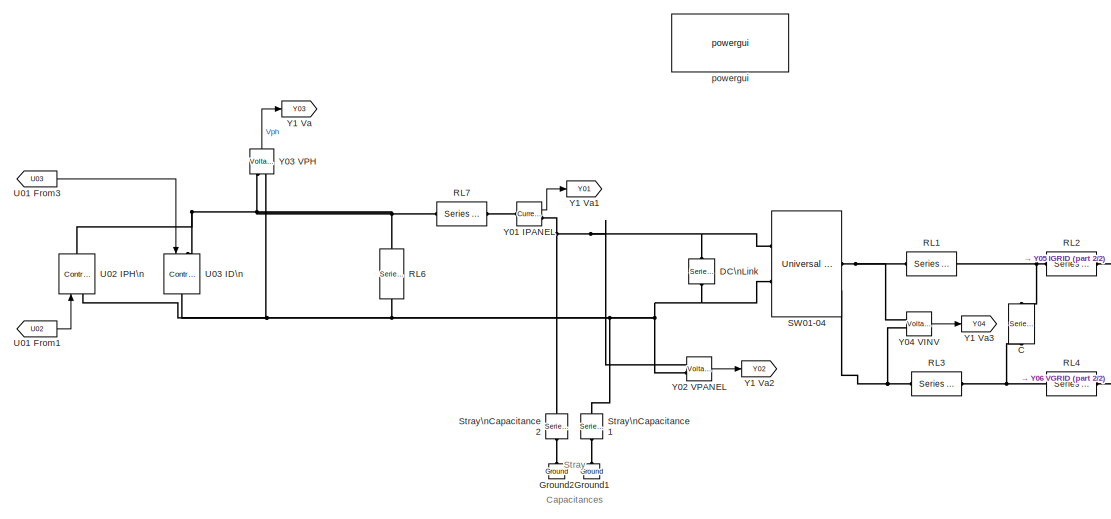
[diagram: root canvas - part 1/2, left side, full height]
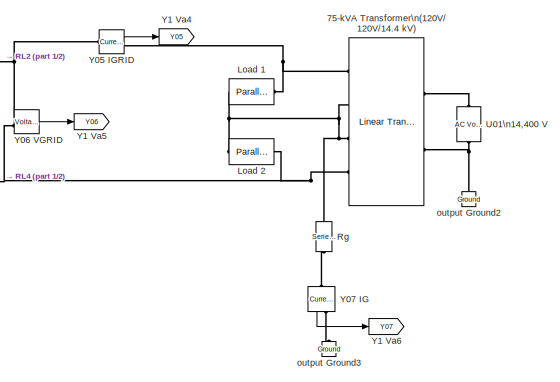
[diagram: root canvas - part 2/2, bottom right region]
MODEL my_pv_sys_fpga
KIND model
BLOCK [Reference] 75-kVA Transformer\n(120V//120V//14.4 kV)  REF=powerlib/Elements/Linear Transformer
  DataType = off
  Measurements = None
  NominalPower = [75e3,60]
  Ports = [0, 0, 0, 0, 0, 2, 4]
  RmLm = [50,50]
  SID = 3
  SourceBlock = powerlib/Elements/Linear Transformer
  SourceType = Linear Transformer
  ThreeWindings = on
  UNITS = pu
  winding1 = [14.4e3 0.01,0.03]
  winding2 = [120,0.02,0]
  winding3 = [120,0.02,0]
BLOCK [Reference] C  REF=powerlib/Elements/Series RLC Load
  ActivePower = 10.5
  AttributesFormatString = \\n
  CapacitivePower = 630
  InductivePower = 0
  InitialCurrent = 0
  InitialVoltage = 0
  LConnTagsString = a
  Measurements = None
  NominalFrequency = 50
  NominalVoltage = 240
  Ports = [0, 0, 0, 0, 0, 1, 1]
  RConnTagsString = __new0
  SID = 8
  SetiL0 = off
  Setx0 = off
  SourceBlock = powerlib/Elements/Series RLC Load
  SourceType = Series RLC Load
BLOCK [Reference] DC\nLink  REF=powerlib/Elements/Series RLC Branch
  AttributesFormatString = \\n
  BranchType = C
  Capacitance = 3000e-6
  Inductance = 1.0
  InitialCurrent = 0
  InitialVoltage = 400
  LConnTagsString = __new0
  Measurements = None
  Ports = [0, 0, 0, 0, 0, 1, 1]
  RConnTagsString = __new0
  Resistance = 1.0
  SID = 10
  SetiL0 = off
  Setx0 = on
  SourceBlock = powerlib/Elements/Series RLC Branch
  SourceType = Series RLC Branch
BLOCK [Reference] Ground1  REF=powerlib/Elements/Ground
  LConnTagsString = a
  Ports = [0, 0, 0, 0, 0, 1]
  SID = 39
  SourceBlock = powerlib/Elements/Ground
  SourceType = Ground
BLOCK [Reference] Ground2  REF=powerlib/Elements/Ground
  LConnTagsString = a
  Ports = [0, 0, 0, 0, 0, 1]
  SID = 40
  SourceBlock = powerlib/Elements/Ground
  SourceType = Ground
BLOCK [Reference] Load 1  REF=powerlib/Elements/Parallel RLC Load
  ActivePower = 5e3
  AttributesFormatString = \\n
  CapacitivePower = 0
  InductivePower = 0
  InitialCurrent = 0
  InitialVoltage = 0
  LConnTagsString = a
  Measurements = None
  NominalFrequency = 50
  NominalVoltage = 120
  Ports = [0, 0, 0, 0, 0, 1, 1]
  RConnTagsString = __new0
  SID = 42
  SetiL0 = off
  Setx0 = off
  SourceBlock = powerlib/Elements/Parallel RLC Load
  SourceType = Parallel RLC Load
BLOCK [Reference] Load 2  REF=powerlib/Elements/Parallel RLC Load
  ActivePower = 5e3
  AttributesFormatString = \\n
  CapacitivePower = 0
  InductivePower = 0
  InitialCurrent = 0
  InitialVoltage = 0
  LConnTagsString = a
  Measurements = None
  NominalFrequency = 50
  NominalVoltage = 120
  Ports = [0, 0, 0, 0, 0, 1, 1]
  RConnTagsString = __new0
  SID = 43
  SetiL0 = off
  Setx0 = off
  SourceBlock = powerlib/Elements/Parallel RLC Load
  SourceType = Parallel RLC Load
BLOCK [Reference] RL1  REF=powerlib/Elements/Series RLC Branch
  BranchType = RL
  Capacitance = 1e-6
  Inductance = 2.183e-3
  InitialCurrent = 0
  InitialVoltage = 0
  LConnTagsString = __new0
  Measurements = None
  Ports = [0, 0, 0, 0, 0, 1, 1]
  RConnTagsString = __new0
  Resistance = 8.23e-3
  SID = 54
  SetiL0 = off
  Setx0 = off
  SourceBlock = powerlib/Elements/Series RLC Branch
  SourceType = Series RLC Branch
BLOCK [Reference] RL2  REF=powerlib/Elements/Series RLC Branch
  BranchType = RL
  Capacitance = 1e-6
  Inductance = 2.183e-3
  InitialCurrent = 0
  InitialVoltage = 0
  LConnTagsString = __new0
  Measurements = None
  Ports = [0, 0, 0, 0, 0, 1, 1]
  RConnTagsString = __new0
  Resistance = 8.23e-3
  SID = 55
  SetiL0 = off
  Setx0 = off
  SourceBlock = powerlib/Elements/Series RLC Branch
  SourceType = Series RLC Branch
BLOCK [Reference] RL3  REF=powerlib/Elements/Series RLC Branch
  BranchType = RL
  Capacitance = 1e-6
  Inductance = 2.183e-3
  InitialCurrent = 0
  InitialVoltage = 0
  LConnTagsString = __new0
  Measurements = None
  Ports = [0, 0, 0, 0, 0, 1, 1]
  RConnTagsString = __new0
  Resistance = 8.23e-3
  SID = 56
  SetiL0 = off
  Setx0 = off
  SourceBlock = powerlib/Elements/Series RLC Branch
  SourceType = Series RLC Branch
BLOCK [Reference] RL4  REF=powerlib/Elements/Series RLC Branch
  BranchType = RL
  Capacitance = 1e-6
  Inductance = 2.183e-3
  InitialCurrent = 0
  InitialVoltage = 0
  LConnTagsString = __new0
  Measurements = None
  Ports = [0, 0, 0, 0, 0, 1, 1]
  RConnTagsString = __new0
  Resistance = 8.23e-3
  SID = 57
  SetiL0 = off
  Setx0 = off
  SourceBlock = powerlib/Elements/Series RLC Branch
  SourceType = Series RLC Branch
BLOCK [Reference] RL6  REF=powerlib/Elements/Series RLC Branch
  BranchType = R
  Capacitance = 1e-6
  Inductance = 2.183e-3
  InitialCurrent = 0
  InitialVoltage = 0
  LConnTagsString = __new0
  Measurements = None
  Ports = [0, 0, 0, 0, 0, 1, 1]
  RConnTagsString = __new0
  Resistance = 301.8
  SID = 69
  SetiL0 = off
  Setx0 = off
  SourceBlock = powerlib/Elements/Series RLC Branch
  SourceType = Series RLC Branch
BLOCK [Reference] RL7  REF=powerlib/Elements/Series RLC Branch
  BranchType = R
  Capacitance = 1e-6
  Inductance = 2.183e-3
  InitialCurrent = 0
  InitialVoltage = 0
  LConnTagsString = __new0
  Measurements = None
  Ports = [0, 0, 0, 0, 0, 1, 1]
  RConnTagsString = __new0
  Resistance = 0.247
  SID = 91
  SetiL0 = off
  Setx0 = off
  SourceBlock = powerlib/Elements/Series RLC Branch
  SourceType = Series RLC Branch
BLOCK [Reference] Rg  REF=powerlib/Elements/Series RLC Branch
  BranchType = R
  Capacitance = 50e-9
  Inductance = 1
  InitialCurrent = 0
  InitialVoltage = 0
  LConnTagsString = __new0
  Measurements = None
  Ports = [0, 0, 0, 0, 0, 1, 1]
  RConnTagsString = __new0
  Resistance = 0.2
  SID = 58
  SetiL0 = off
  Setx0 = off
  SourceBlock = powerlib/Elements/Series RLC Branch
  SourceType = Series RLC Branch
BLOCK [Reference] SW01-04  REF=powerlib/Power\nElectronics/Universal Bridge
  Arms = 2
  Device = IGBT / Diodes
  ForwardVoltage = 0
  ForwardVoltages = [ 0 0 ]
  GTOparameters = [ 10e-6 , 20e-6 ]
  IGBTparameters = [ 50e-6 , 50e-6 ]*0
  Lon = 0
  Measurements = None
  Measurements_2 = None
  Ports = [1, 0, 0, 0, 0, 2, 2]
  Ron = 1e-3
  SID = 41
  SnubberCapacitance = inf
  SnubberResistance = 1e6
  SourceBlock = powerlib/Power\nElectronics/Universal Bridge
  SourceType = Universal Bridge
  converterType = Rectifier
BLOCK [Reference] Stray\nCapacitance1  REF=powerlib/Elements/Series RLC Branch
  BranchType = C
  Capacitance = 4e-9
  Inductance = 1
  InitialCurrent = 0
  InitialVoltage = 0
  LConnTagsString = __new0
  Measurements = None
  Ports = [0, 0, 0, 0, 0, 1, 1]
  RConnTagsString = __new0
  Resistance = 1e-3
  SID = 59
  SetiL0 = off
  Setx0 = off
  SourceBlock = powerlib/Elements/Series RLC Branch
  SourceType = Series RLC Branch
BLOCK [Reference] Stray\nCapacitance2  REF=powerlib/Elements/Series RLC Branch
  BranchType = C
  Capacitance = 4e-9
  Inductance = 1
  InitialCurrent = 0
  InitialVoltage = 0
  LConnTagsString = __new0
  Measurements = None
  Ports = [0, 0, 0, 0, 0, 1, 1]
  RConnTagsString = __new0
  Resistance = 1e-3
  SID = 60
  SetiL0 = off
  Setx0 = off
  SourceBlock = powerlib/Elements/Series RLC Branch
  SourceType = Series RLC Branch
BLOCK [From] U01 From1
  GotoTag = U02
  SID = 104
BLOCK [From] U01 From3
  GotoTag = U03
  SID = 106
BLOCK [Reference] U01\n14,400 V  REF=powerlib/Electrical\nSources/AC Voltage Source
  Amplitude = 14400*sqrt(2)
  AttributesFormatString = \\n
  Description = source block
  Frequency = 50
  Measurements = None
  Phase = 0
  Ports = [0, 0, 0, 0, 0, 1, 1]
  SID = 81
  SampleTime = 0
  SourceBlock = powerlib/Electrical\nSources/AC Voltage Source
  SourceType = AC Voltage Source
BLOCK [Reference] U02 IPH\n  REF=powerlib/Electrical\nSources/Controlled Current Source
  Amplitude = 8.05
  Frequency = 0
  Initialize = on
  Measurements = None
  Phase = 0
  Ports = [1, 0, 0, 0, 0, 1, 1]
  SID = 75
  SourceBlock = powerlib/Electrical\nSources/Controlled Current Source
  SourceType = Controlled Current Source
  Source_Type = DC
BLOCK [Reference] U03 ID\n  REF=powerlib/Electrical\nSources/Controlled Current Source
  Amplitude = 8.05
  Frequency = 0
  Initialize = on
  Measurements = None
  Phase = 0
  Ports = [1, 0, 0, 0, 0, 1, 1]
  SID = 74
  SourceBlock = powerlib/Electrical\nSources/Controlled Current Source
  SourceType = Controlled Current Source
  Source_Type = DC
BLOCK [Reference] Y01 IPANEL  REF=powerlib/Measurements/Current Measurement
  OutputType = Complex
  PSBequivalent = 0
  PhasorSimulation = off
  Ports = [0, 1, 0, 0, 0, 1, 1]
  SID = 92
  SourceBlock = powerlib/Measurements/Current Measurement
  SourceType = Current Measurement
  UserDataPersistent = on
BLOCK [Reference] Y02 VPANEL  REF=powerlib/Measurements/Voltage Measurement
  OutputType = Complex
  PSBequivalent = 0
  PhasorSimulation = off
  Ports = [0, 1, 0, 0, 0, 2]
  SID = 94
  SourceBlock = powerlib/Measurements/Voltage Measurement
  SourceType = Voltage Measurement
  UserDataPersistent = on
BLOCK [Reference] Y03 VPH  REF=powerlib/Measurements/Voltage Measurement
  OutputType = Complex
  PSBequivalent = 0
  PhasorSimulation = off
  Ports = [0, 1, 0, 0, 0, 2]
  SID = 73
  SourceBlock = powerlib/Measurements/Voltage Measurement
  SourceType = Voltage Measurement
  UserDataPersistent = on
BLOCK [Reference] Y04 VINV  REF=powerlib/Measurements/Voltage Measurement
  OutputType = Complex
  PSBequivalent = 0
  PhasorSimulation = off
  Ports = [0, 1, 0, 0, 0, 2]
  SID = 95
  SourceBlock = powerlib/Measurements/Voltage Measurement
  SourceType = Voltage Measurement
  UserDataPersistent = on
BLOCK [Reference] Y05 IGRID  REF=powerlib/Measurements/Current Measurement
  OutputType = Complex
  PSBequivalent = 0
  PhasorSimulation = off
  Ports = [0, 1, 0, 0, 0, 1, 1]
  SID = 98
  SourceBlock = powerlib/Measurements/Current Measurement
  SourceType = Current Measurement
  UserDataPersistent = on
BLOCK [Reference] Y06 VGRID  REF=powerlib/Measurements/Voltage Measurement
  OutputType = Complex
  PSBequivalent = 0
  PhasorSimulation = off
  Ports = [0, 1, 0, 0, 0, 2]
  SID = 99
  SourceBlock = powerlib/Measurements/Voltage Measurement
  SourceType = Voltage Measurement
  UserDataPersistent = on
BLOCK [Reference] Y07 IG  REF=powerlib/Measurements/Current Measurement
  OutputType = Complex
  PSBequivalent = 0
  PhasorSimulation = off
  Ports = [0, 1, 0, 0, 0, 1, 1]
  SID = 9
  SourceBlock = powerlib/Measurements/Current Measurement
  SourceType = Current Measurement
  UserDataPersistent = on
BLOCK [Goto] Y1 Va
  GotoTag = Y03
  SID = 107
BLOCK [Goto] Y1 Va1
  GotoTag = Y01
  SID = 109
BLOCK [Goto] Y1 Va2
  GotoTag = Y02
  SID = 110
BLOCK [Goto] Y1 Va3
  GotoTag = Y04
  SID = 111
BLOCK [Goto] Y1 Va4
  GotoTag = Y05
  SID = 112
BLOCK [Goto] Y1 Va5
  GotoTag = Y06
  SID = 113
BLOCK [Goto] Y1 Va6
  GotoTag = Y07
  SID = 114
BLOCK [Reference] output Ground2  REF=powerlib/Elements/Ground
  AttributesFormatString = \\n
  LConnTagsString = a
  Ports = [0, 0, 0, 0, 0, 1]
  SID = 82
  SourceBlock = powerlib/Elements/Ground
  SourceType = Ground
BLOCK [Reference] output Ground3  REF=powerlib/Elements/Ground
  AttributesFormatString = \\n
  LConnTagsString = a
  Ports = [0, 0, 0, 0, 0, 1]
  SID = 83
  SourceBlock = powerlib/Elements/Ground
  SourceType = Ground
BLOCK [Reference] powergui  REF=powerlib/powergui
  DisableRonSwitches = off
  DisableSnubberDevices = off
  DisableVfSwitches = off
  DisplayEquations = off
  DisplayStyle = 1
  EnableUseOfTLC = off
  ErrMax = 1e-4
  Frange = [0:2:500]
  FreqAxis = off
  FunctionMessages = off
  HookPort = off
  Interpol = off
  Iterations = 50
  MaxFrequency = 1000
  Pbase = 100e6
  Ports = []
  Priority = 1
  ResistiveCurrentMeasurement = off
  RestoreLinks = warning
  RmsSteady = 1
  SID = 115
  SPID = off
  SampleTime = Ts
  ShowGrid = off
  SolverType = Tustin/Backward Euler (TBE)
  SourceBlock = powerlib/powergui
  SourceType = PSB option menu block
  StartTime = 7.29
  SwTol = 0
  Ts = 0
  UnitsV = kV
  UnitsW = MW
  UserData = DataTag0
  UserDataPersistent = on
  Xlog = on
  Ylog = off
  ZoomFFT = off
  cycles = 3
  display = off
  echomessages = off
  frequency = 60
  frequencyindice = 0
  frequencyindicesteady = 1
  fundamental = 50
  methode = off
  save = off
  structure = ScopeData
  variable = ZData
  x0status = blocks
ANNOTATION (root): Stray\nCapacitances
LINE U01 From1:1 -> U02 IPH\n:1
LINE U01 From3:1 -> U03 ID\n:1
LINE Y01 IPANEL:1 -> Y1 Va1:1
LINE Y02 VPANEL:1 -> Y1 Va2:1
LINE Y03 VPH:1 -> Y1 Va:1
LINE Y04 VINV:1 -> Y1 Va3:1
LINE Y05 IGRID:1 -> Y1 Va4:1
LINE Y06 VGRID:1 -> Y1 Va5:1
LINE Y07 IG:1 -> Y1 Va6:1
PLINE 75-kVA Transformer\n(120V//120V//14.4 kV):LConn1 -- U01\n14,400 V:RConn1
PNET net1: 75-kVA Transformer\n(120V//120V//14.4 kV):LConn2 -- U01\n14,400 V:LConn1 -- output Ground2:LConn1
PNET net2: 75-kVA Transformer\n(120V//120V//14.4 kV):RConn1 -- Load 1:RConn1 -- Y05 IGRID:RConn1
PNET net3: 75-kVA Transformer\n(120V//120V//14.4 kV):RConn2 -- 75-kVA Transformer\n(120V//120V//14.4 kV):RConn3 -- Load 1:LConn1 -- Load 2:LConn1 -- Rg:LConn1
PNET net4: 75-kVA Transformer\n(120V//120V//14.4 kV):RConn4 -- Load 2:RConn1 -- RL4:RConn1 -- Y06 VGRID:LConn2
PNET net5: C:LConn1 -- RL3:RConn1 -- RL4:LConn1
PNET net6: C:RConn1 -- RL1:RConn1 -- RL2:LConn1
PNET net7: DC\nLink:LConn1 -- SW01-04:RConn1 -- Stray\nCapacitance2:LConn1 -- Y01 IPANEL:RConn1 -- Y02 VPANEL:LConn1
PNET net8: DC\nLink:RConn1 -- RL6:LConn1 -- SW01-04:RConn2 -- Stray\nCapacitance1:LConn1 -- U02 IPH\n:LConn1 -- U03 ID\n:RConn1 -- Y02 VPANEL:LConn2 -- Y03 VPH:LConn2
PLINE Ground1:LConn1 -- Stray\nCapacitance1:RConn1
PLINE Ground2:LConn1 -- Stray\nCapacitance2:RConn1
PNET net9: RL1:LConn1 -- SW01-04:LConn1 -- Y04 VINV:LConn1
PNET net10: RL2:RConn1 -- Y05 IGRID:LConn1 -- Y06 VGRID:LConn1
PNET net11: RL3:LConn1 -- SW01-04:LConn2 -- Y04 VINV:LConn2
PNET net12: RL6:RConn1 -- RL7:LConn1 -- U02 IPH\n:RConn1 -- U03 ID\n:LConn1 -- Y03 VPH:LConn1
PLINE RL7:RConn1 -- Y01 IPANEL:LConn1
PLINE Rg:RConn1 -- Y07 IG:LConn1
PLINE Y07 IG:RConn1 -- output Ground3:LConn1
note: PNET lines group multi-terminal physical nets as a canonical sorted terminal list (undirected conserving connections); 2-terminal nets keep the pairwise PLINE form
